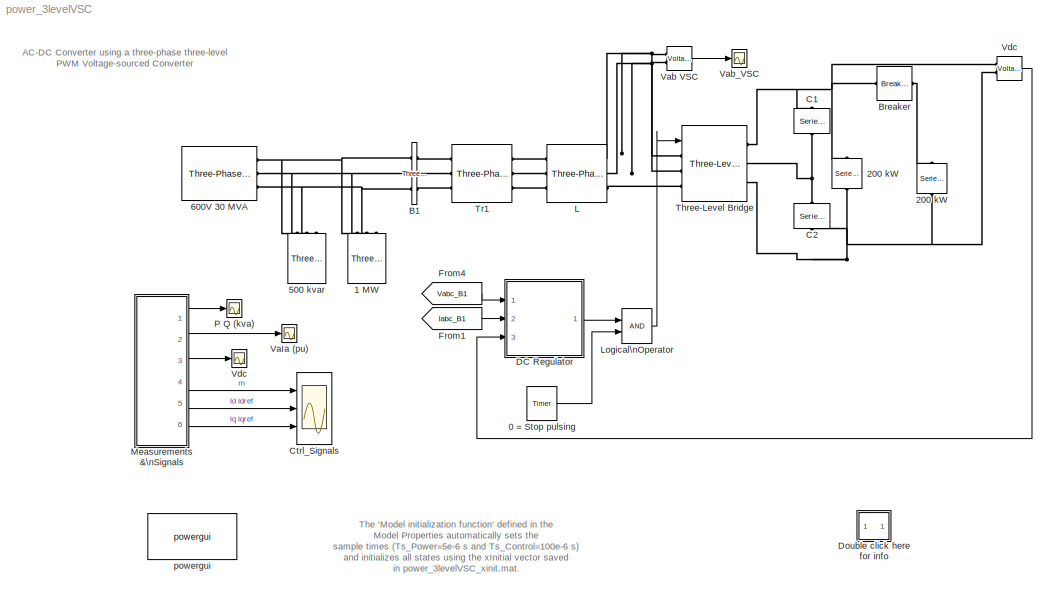
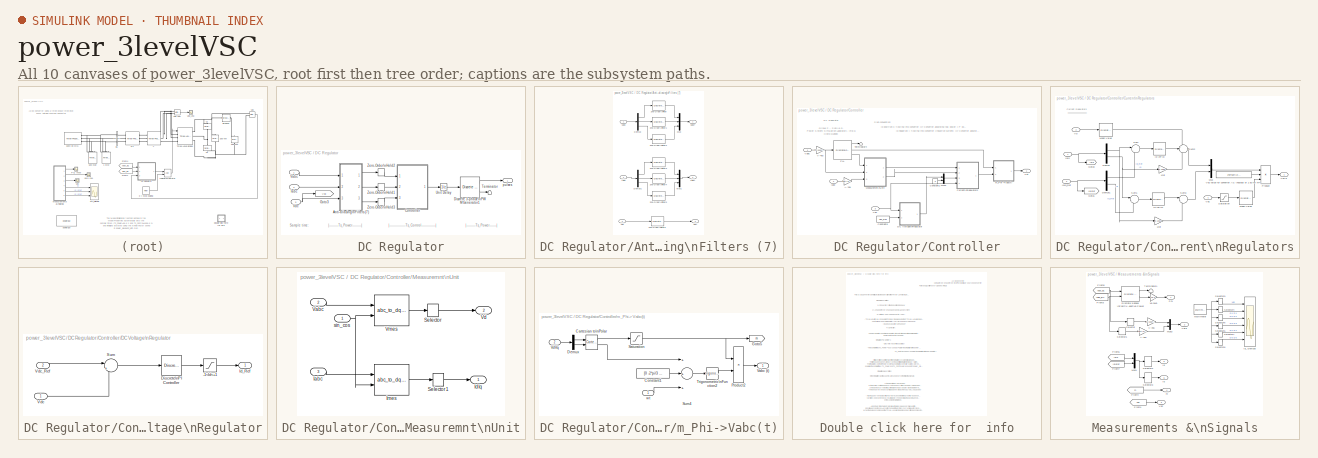
[diagram: thumbnail index - all 10 canvases of the model, root first then tree order]
MODEL power_3levelVSC
KIND model
CONFIG InitFcn = Ts_Power=5e-6;\nTs_Control=100e-6;\nload power_3levelVSC_xinit
BLOCK [Reference] 0 = Stop pulsing  REF=powerlib_extras/Control \nBlocks/Timer
  Ports = [0, 1]
  ShowPortLabels = on
  SourceBlock = powerlib_extras/Control \nBlocks/Timer
  SourceType = Timer
  e = [1 0]
  t = [0 0.1]
BLOCK [Reference] 1 MW  REF=powerlib/Elements/Three-Phase\nSeries RLC Load
  ActivePower = 1e6
  AttributesFormatString = \\n
  CapacitivePower = 0
  Configuration = Y (grounded)
  InductivePower = 0
  LConnTagsString = A|B|C
  LeftPortType = p1
  Measurements = None
  NominalFrequency = 60
  NominalVoltage = 600
  PhysicalDomain = powersysdomain
  Ports = [0, 0, 0, 0, 0, 3]
  RightPortType = p1
  SourceBlock = powerlib/Elements/Three-Phase\nSeries RLC Load
  SourceType = Three-Phase Series RLC Load
  SubClassName = unknown
BLOCK [Reference] 200 kW  REF=powerlib/Elements/Series RLC Branch
  AttributesFormatString = \\n
  Capacitance = inf
  Inductance = 0
  LConnTagsString = __new0
  LeftPortType = p1
  Measurements = None
  PhysicalDomain = powersysdomain
  Ports = [0, 0, 0, 0, 0, 1, 1]
  RConnTagsString = __new0
  Resistance = 500^2/200e3
  RightPortType = p1
  SourceBlock = powerlib/Elements/Series RLC Branch
  SourceType = Series RLC Branch
  SubClassName = unknown
BLOCK [Reference] 200 kW   REF=powerlib/Elements/Series RLC Branch
  AttributesFormatString = \\n
  Capacitance = inf
  Inductance = 0
  LConnTagsString = __new0
  LeftPortType = p1
  Measurements = None
  PhysicalDomain = powersysdomain
  Ports = [0, 0, 0, 0, 0, 1, 1]
  RConnTagsString = __new0
  Resistance = 500^2/200e3
  RightPortType = p1
  SourceBlock = powerlib/Elements/Series RLC Branch
  SourceType = Series RLC Branch
  SubClassName = unknown
BLOCK [Reference] 500 kvar  REF=powerlib/Elements/Three-Phase\nSeries RLC Load
  ActivePower = 0.5e6/100
  AttributesFormatString = \\n
  CapacitivePower = 0.5e6
  Configuration = Y (grounded)
  InductivePower = 0
  LConnTagsString = A|B|C
  LeftPortType = p1
  Measurements = None
  NominalFrequency = 60
  NominalVoltage = 600
  PhysicalDomain = powersysdomain
  Ports = [0, 0, 0, 0, 0, 3]
  RightPortType = p1
  SourceBlock = powerlib/Elements/Three-Phase\nSeries RLC Load
  SourceType = Three-Phase Series RLC Load
  SubClassName = unknown
BLOCK [Reference] 600V 30 MVA  REF=powerlib/Electrical\nSources/Three-Phase Source
  BaseVoltage = 600
  Frequency = 60
  Inductance = 19.2e-3
  InternalConnection = Yg
  PhaseAngle = 0
  Ports = [0, 0, 0, 0, 0, 0, 3]
  Resistance = 0.724
  ShortCircuitLevel = 30e6
  ShowPortLabels = on
  SourceBlock = powerlib/Electrical\nSources/Three-Phase Source
  SourceType = Three-Phase Source
  SpecifyImpedance = on
  Voltage = 600
  XRratio = 10
BLOCK [Reference] B1  REF=powerlib/Measurements/Three-Phase\nV-I Measurement
  CurrentMeasurement = yes
  Ipu = off
  LabelI = Iabc_B1
  LabelV = Vabc_B1
  OutputType = Magnitude
  PSBequivalent = 0
  Pbase = 100e6
  PhasorSimulation = off
  Ports = [0, 0, 0, 0, 0, 3, 3]
  SetLabelI = on
  SetLabelV = on
  ShowPortLabels = on
  SourceBlock = powerlib/Measurements/Three-Phase\nV-I Measurement
  SourceType = Three-Phase VI Measurement
  Vbase = 500e3
  VoltageMeasurement = phase-to-ground
  Vpu = off
BLOCK [Reference] Breaker  REF=powerlib/Elements/Breaker
  AttributesFormatString = \\n
  BreakerResistance = 0.001
  External = off
  InitialState = 0
  Measurements = None
  Ports = [0, 0, 0, 0, 0, 1, 1]
  ShowPortLabels = on
  SnubberCapacitance = inf
  SnubberResistance = 1e6
  SourceBlock = powerlib/Elements/Breaker
  SourceType = Breaker
  SwitchingTimes = [0.05]
BLOCK [Reference] C1  REF=powerlib/Elements/Series RLC Branch
  AttributesFormatString = \\n
  Capacitance = 75000e-06
  Inductance = 0
  LConnTagsString = __new0
  LeftPortType = p1
  Measurements = None
  PhysicalDomain = powersysdomain
  Ports = [0, 0, 0, 0, 0, 1, 1]
  RConnTagsString = __new0
  Resistance = 0
  RightPortType = p1
  SourceBlock = powerlib/Elements/Series RLC Branch
  SourceType = Series RLC Branch
  SubClassName = unknown
BLOCK [Reference] C2  REF=powerlib/Elements/Series RLC Branch
  AttributesFormatString = \\n
  Capacitance = 75000e-06
  Inductance = 0
  LConnTagsString = __new0
  LeftPortType = p1
  Measurements = None
  PhysicalDomain = powersysdomain
  Ports = [0, 0, 0, 0, 0, 1, 1]
  RConnTagsString = __new0
  Resistance = 0
  RightPortType = p1
  SourceBlock = powerlib/Elements/Series RLC Branch
  SourceType = Series RLC Branch
  SubClassName = unknown
BLOCK [Scope] Ctrl_Signals
  DataFormat = Array
  LimitDataPoints = off
  NumInputPorts = 3
  Ports = [3]
  SampleInput = on
  SampleTime = Ts_Control
  SaveName = V_Load
  TimeRange = 0.15
  YMax = 1~1.5~0.1
  YMin = 0.2~-0.5~-0.3
  ZoomMode = yonly
BLOCK [SubSystem] DC Regulator
  MaskEnableString = on
  MaskIconFrame = on
  MaskIconOpaque = on
  MaskIconRotate = none
  MaskIconUnits = autoscale
  MaskPromptString = DC voltage setpoint (V):
  MaskStyleString = edit
  MaskToolTipString = on
  MaskTunableValueString = on
  MaskType = DC Voltage Regulator
  MaskValueString = 500
  MaskVariables = Vdc_Ref=@1;
  MaskVisibilityString = on
  MinAlgLoopOccurrences = off
  Ports = [3, 1]
  RTWSystemCode = Auto
  TreatAsAtomicUnit = off
BLOCK [SubSystem] DC Regulator/Anti-aliasing\nFilters (7)
  MaskCallbackString = |
  MaskEnableString = on,on
  MaskIconFrame = on
  MaskIconOpaque = on
  MaskIconRotate = none
  MaskIconUnits = autoscale
  MaskPromptString = Cut-off frequency (Hz):|Sample time:
  MaskStyleString = edit,edit
  MaskTabNameString = ,
  MaskToolTipString = on,on
  MaskTunableValueString = on,on
  MaskType = Anti-aliasing (2nd order lowpass)
  MaskValueString = 750|Ts_Power
  MaskVarAliasString = ,
  MaskVariables = Fc=@1;Ts=@2;
  MaskVisibilityString = on,on
  MinAlgLoopOccurrences = off
  Ports = [3, 3]
  RTWSystemCode = Auto
  TreatAsAtomicUnit = off
BLOCK [Outport] DC Regulator/Anti-aliasing\nFilters (7)/ Vabc*
  IconDisplay = Port number
BLOCK [Outport] DC Regulator/Anti-aliasing\nFilters (7)/ Vdc*
  IconDisplay = Port number
  Port = 3
BLOCK [Reference] DC Regulator/Anti-aliasing\nFilters (7)/2nd-Order\nFilter  REF=powerlib_extras/Discrete \nControl Blocks/Discrete \n2nd-Order\nFilter
  FilterType = Lowpass
  Fo = Fc
  Initialize = off
  PlotResponse = off
  Ports = [1, 1]
  ShowPortLabels = on
  SourceBlock = powerlib_extras/Discrete \nControl Blocks/Discrete \n2nd-Order\nFilter
  SourceType = Discrete 2nd-Order Filter
  Ts = Ts
  Vac_Init = [0.8 -25 60]
  Vdc_Init = -0.4
  Zeta = 0.707
  param1 = [1 2000 0.2]
BLOCK [Reference] DC Regulator/Anti-aliasing\nFilters (7)/2nd-Order\nFilter1  REF=powerlib_extras/Discrete \nControl Blocks/Discrete \n2nd-Order\nFilter
  FilterType = Lowpass
  Fo = Fc
  Initialize = off
  PlotResponse = off
  Ports = [1, 1]
  ShowPortLabels = on
  SourceBlock = powerlib_extras/Discrete \nControl Blocks/Discrete \n2nd-Order\nFilter
  SourceType = Discrete 2nd-Order Filter
  Ts = Ts
  Vac_Init = [0.8 -25 60]
  Vdc_Init = -0.4
  Zeta = 0.707
  param1 = [1 5000 0.1]
BLOCK [Reference] DC Regulator/Anti-aliasing\nFilters (7)/2nd-Order\nFilter2  REF=powerlib_extras/Discrete \nControl Blocks/Discrete \n2nd-Order\nFilter
  FilterType = Lowpass
  Fo = Fc
  Initialize = off
  PlotResponse = off
  Ports = [1, 1]
  ShowPortLabels = on
  SourceBlock = powerlib_extras/Discrete \nControl Blocks/Discrete \n2nd-Order\nFilter
  SourceType = Discrete 2nd-Order Filter
  Ts = Ts
  Vac_Init = [0.8 -25 60]
  Vdc_Init = -0.4
  Zeta = 0.707
  param1 = [1 5000 0.1]
BLOCK [Reference] DC Regulator/Anti-aliasing\nFilters (7)/2nd-Order\nFilter3  REF=powerlib_extras/Discrete \nControl Blocks/Discrete \n2nd-Order\nFilter
  FilterType = Lowpass
  Fo = Fc
  Initialize = off
  PlotResponse = off
  Ports = [1, 1]
  ShowPortLabels = on
  SourceBlock = powerlib_extras/Discrete \nControl Blocks/Discrete \n2nd-Order\nFilter
  SourceType = Discrete 2nd-Order Filter
  Ts = Ts
  Vac_Init = [0.8 -25 60]
  Vdc_Init = -0.4
  Zeta = 0.707
  param1 = [1 2000 0.2]
BLOCK [Reference] DC Regulator/Anti-aliasing\nFilters (7)/2nd-Order\nFilter4  REF=powerlib_extras/Discrete \nControl Blocks/Discrete \n2nd-Order\nFilter
  FilterType = Lowpass
  Fo = Fc
  Initialize = off
  PlotResponse = off
  Ports = [1, 1]
  ShowPortLabels = on
  SourceBlock = powerlib_extras/Discrete \nControl Blocks/Discrete \n2nd-Order\nFilter
  SourceType = Discrete 2nd-Order Filter
  Ts = Ts
  Vac_Init = [0.8 -25 60]
  Vdc_Init = -0.4
  Zeta = 0.707
  param1 = [1 5000 0.1]
BLOCK [Reference] DC Regulator/Anti-aliasing\nFilters (7)/2nd-Order\nFilter5  REF=powerlib_extras/Discrete \nControl Blocks/Discrete \n2nd-Order\nFilter
  FilterType = Lowpass
  Fo = Fc
  Initialize = off
  PlotResponse = off
  Ports = [1, 1]
  ShowPortLabels = on
  SourceBlock = powerlib_extras/Discrete \nControl Blocks/Discrete \n2nd-Order\nFilter
  SourceType = Discrete 2nd-Order Filter
  Ts = Ts
  Vac_Init = [0.8 -25 60]
  Vdc_Init = -0.4
  Zeta = 0.707
  param1 = [1 5000 0.1]
BLOCK [Reference] DC Regulator/Anti-aliasing\nFilters (7)/2nd-Order\nFilter6  REF=powerlib_extras/Discrete \nControl Blocks/Discrete \n2nd-Order\nFilter
  FilterType = Lowpass
  Fo = Fc
  Initialize = off
  PlotResponse = off
  Ports = [1, 1]
  ShowPortLabels = on
  SourceBlock = powerlib_extras/Discrete \nControl Blocks/Discrete \n2nd-Order\nFilter
  SourceType = Discrete 2nd-Order Filter
  Ts = Ts
  Vac_Init = [0.8 -25 60]
  Vdc_Init = -0.4
  Zeta = 0.707
  param1 = [1 5000 0.1]
BLOCK [Demux] DC Regulator/Anti-aliasing\nFilters (7)/Demux
  Outputs = 3
  Ports = [1, 3]
BLOCK [Demux] DC Regulator/Anti-aliasing\nFilters (7)/Demux1
  Outputs = 3
  Ports = [1, 3]
BLOCK [Inport] DC Regulator/Anti-aliasing\nFilters (7)/Iabc 
  IconDisplay = Port number
  LatchInput = off
  Port = 2
  PortDimensions = 3
BLOCK [Outport] DC Regulator/Anti-aliasing\nFilters (7)/Iabc*
  IconDisplay = Port number
  Port = 2
BLOCK [Mux] DC Regulator/Anti-aliasing\nFilters (7)/Mux
  DisplayOption = bar
  Inputs = 3
  Ports = [3, 1]
BLOCK [Mux] DC Regulator/Anti-aliasing\nFilters (7)/Mux1
  DisplayOption = bar
  Inputs = 3
  Ports = [3, 1]
BLOCK [Inport] DC Regulator/Anti-aliasing\nFilters (7)/Vabc
  IconDisplay = Port number
  LatchInput = off
  Port = 1
  PortDimensions = 3
BLOCK [Inport] DC Regulator/Anti-aliasing\nFilters (7)/Vdc 
  IconDisplay = Port number
  LatchInput = off
  Port = 3
  PortDimensions = 1
BLOCK [SubSystem] DC Regulator/Controller
  MaskCallbackString = ||||
  MaskEnableString = on,on,on,on,on
  MaskIconFrame = on
  MaskIconOpaque = on
  MaskIconRotate = none
  MaskIconUnits = autoscale
  MaskInitialization = Vnom=Par_Nom(1);\nPnom=Par_Nom(2);\nKp_I=Par_IReg(1);\nKi_I=Par_IReg(2);\nKp_Vdc=Par_VdcReg(1);\nKi_Vdc=Par_VdcReg(2);\n
  MaskPromptString = DC Voltage setpoint (Volts)|Vdc Regulator Gains: [ Kp  Ki ]|Current Regulators Gain: [ Kp Ki Kd ]|Nominal Voltage and power: [ Vnom (volts rms L-L)  Pnom (VA) ]|Time Step (s)
  MaskStyleString = edit,edit,edit,edit,edit
  MaskTabNameString = ,,,,
  MaskToolTipString = on,on,on,on,on
  MaskTunableValueString = on,on,on,on,on
  MaskType = DC Regulator
  MaskValueString = Vdc_Ref|[0.015 1.6]|[0.3 20]|[600 500e3]|Ts_Control
  MaskVarAliasString = ,,,,
  MaskVariables = Vdc_Ref=@1;Par_VdcReg=@2;Par_IReg=@3;Par_Nom=@4;Ts=@5;
  MaskVisibilityString = on,on,on,on,on
  MinAlgLoopOccurrences = off
  Ports = [3, 1]
  RTWSystemCode = Auto
  TreatAsAtomicUnit = off
BLOCK [Gain] DC Regulator/Controller/A->pu
  Gain = sqrt(3)*Vnom/sqrt(2)/Pnom
BLOCK [Constant] DC Regulator/Controller/Constant1
  Value = 0
BLOCK [Constant] DC Regulator/Controller/Constant6
  Value = Vdc_Ref
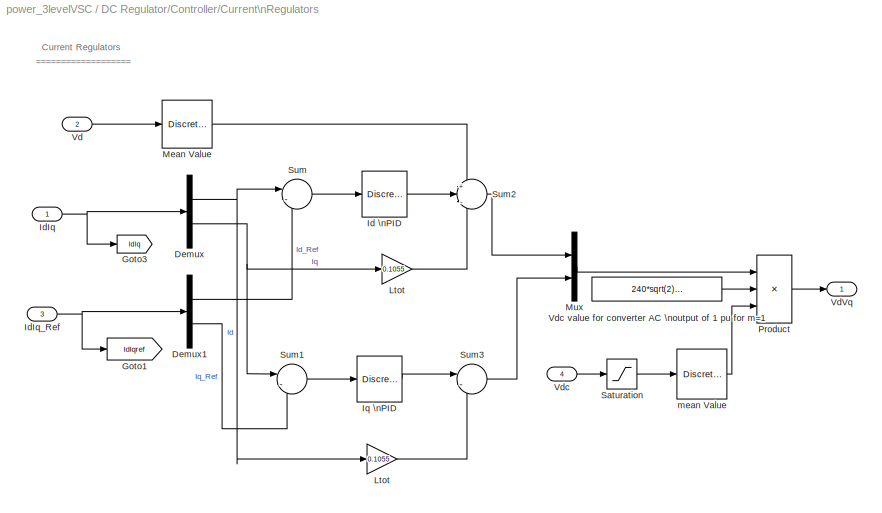
BLOCK [SubSystem] DC Regulator/Controller/Current\nRegulators
  MaskCallbackString = ||||||
  MaskDescription = Sign convention:\nId positive(+) flowing into converter ==> Converter absorbing real power = P positive(+) \nIq negative(-) flowing into converter (inductive current) ==> Converter absorbing reactive power = Q positive(+)
  MaskEnableString = on,on,on,on,on,on,on
  MaskIconFrame = on
  MaskIconOpaque = on
  MaskIconRotate = none
  MaskIconUnits = autoscale
  MaskPromptString = Proportional gain (Kp):|Integral gain (Ki):|Derivative gain (Kd):|Time constant for derivative (s):|Output limits: [ Upper   Lower ]|Output initial value:|Sample time:
  MaskStyleString = edit,edit,edit,edit,edit,edit,edit
  MaskTabNameString = ,,,,,,
  MaskToolTipString = on,on,on,on,on,on,on
  MaskTunableValueString = on,on,on,on,on,on,on
  MaskType = Current Regulators
  MaskValueString = Kp_I|Ki_I|0|0.2e-3|[12 -12]|0|Ts
  MaskVarAliasString = ,,,,,,
  MaskVariables = Kp=@1;Ki=@2;Kd=@3;TcD=@4;Par_Limits=@5;Init=@6;Ts=@7;
  MaskVisibilityString = on,on,on,on,on,on,on
  MinAlgLoopOccurrences = off
  Ports = [4, 1]
  RTWSystemCode = Auto
  TreatAsAtomicUnit = off
BLOCK [Gain] DC Regulator/Controller/Current\nRegulators/ Ltot
  Gain = 0.1055
BLOCK [Demux] DC Regulator/Controller/Current\nRegulators/Demux
  Outputs = 2
  Ports = [1, 2]
BLOCK [Demux] DC Regulator/Controller/Current\nRegulators/Demux1
  Outputs = 2
  Ports = [1, 2]
BLOCK [Goto] DC Regulator/Controller/Current\nRegulators/Goto1
  DialogController = Simulink.DDGSource
  GotoTag = IdIqref
  TagVisibility = global
BLOCK [Goto] DC Regulator/Controller/Current\nRegulators/Goto3
  DialogController = Simulink.DDGSource
  GotoTag = IdIq
  TagVisibility = global
BLOCK [Reference] DC Regulator/Controller/Current\nRegulators/Id \nPID  REF=powerlib_extras/Discrete \nControl Blocks/Discrete\nPID Controller
  Init = Init
  Kd = Kd
  Ki = Ki
  Kp = Kp
  Par_Limits = Par_Limits
  Ports = [1, 1]
  ShowPortLabels = on
  SourceBlock = powerlib_extras/Discrete \nControl Blocks/Discrete\nPID Controller
  SourceType = Discrete PID Controller
  TcD = TcD
  Ts = Ts
BLOCK [Inport] DC Regulator/Controller/Current\nRegulators/IdIq
  IconDisplay = Port number
  LatchInput = off
  Port = 1
  PortDimensions = 2
BLOCK [Inport] DC Regulator/Controller/Current\nRegulators/IdIq_Ref
  IconDisplay = Port number
  LatchInput = off
  Port = 3
  PortDimensions = 2
BLOCK [Reference] DC Regulator/Controller/Current\nRegulators/Iq \nPID  REF=powerlib_extras/Discrete \nControl Blocks/Discrete\nPID Controller
  Init = Init
  Kd = Kd
  Ki = Ki
  Kp = Kp
  Par_Limits = Par_Limits
  Ports = [1, 1]
  ShowPortLabels = on
  SourceBlock = powerlib_extras/Discrete \nControl Blocks/Discrete\nPID Controller
  SourceType = Discrete PID Controller
  TcD = TcD
  Ts = Ts
BLOCK [Gain] DC Regulator/Controller/Current\nRegulators/Ltot 
  Gain = 0.1055
BLOCK [Reference] DC Regulator/Controller/Current\nRegulators/Mean Value  REF=powerlib_extras/Discrete\nMeasurements/Discrete \nMean value
  Freq = 60
  Ports = [1, 1]
  ShowPortLabels = on
  SourceBlock = powerlib_extras/Discrete\nMeasurements/Discrete \nMean value
  SourceType = Discrete Mean value
  Ts = Ts
  Vinit = 1.007
BLOCK [Mux] DC Regulator/Controller/Current\nRegulators/Mux
  DisplayOption = bar
  Inputs = 2
  Ports = [2, 1]
BLOCK [Product] DC Regulator/Controller/Current\nRegulators/Product
  Inputs = **/
  Ports = [3, 1]
  RndMeth = Floor
BLOCK [Saturate] DC Regulator/Controller/Current\nRegulators/Saturation
  LowerLimit = 10
  UpperLimit = 10000
BLOCK [Sum] DC Regulator/Controller/Current\nRegulators/Sum
  IconShape = round
  Inputs = |-+
  Ports = [2, 1]
BLOCK [Sum] DC Regulator/Controller/Current\nRegulators/Sum1
  IconShape = round
  Inputs = |-+
  Ports = [2, 1]
BLOCK [Sum] DC Regulator/Controller/Current\nRegulators/Sum2
  IconShape = round
  Inputs = +|-|+
  Ports = [3, 1]
BLOCK [Sum] DC Regulator/Controller/Current\nRegulators/Sum3
  IconShape = round
  Inputs = |--
  Ports = [2, 1]
BLOCK [Inport] DC Regulator/Controller/Current\nRegulators/Vd
  IconDisplay = Port number
  LatchInput = off
  Port = 2
BLOCK [Outport] DC Regulator/Controller/Current\nRegulators/VdVq
  IconDisplay = Port number
BLOCK [Inport] DC Regulator/Controller/Current\nRegulators/Vdc
  IconDisplay = Port number
  LatchInput = off
  Port = 4
BLOCK [Constant] DC Regulator/Controller/Current\nRegulators/Vdc value for converter AC \noutput of 1 pu for m=1
  Value = 240*sqrt(2)/(sqrt(3)/2)
BLOCK [Reference] DC Regulator/Controller/Current\nRegulators/mean Value   REF=powerlib_extras/Discrete\nMeasurements/Discrete \nMean value
  Freq = 60
  Ports = [1, 1]
  ShowPortLabels = on
  SourceBlock = powerlib_extras/Discrete\nMeasurements/Discrete \nMean value
  SourceType = Discrete Mean value
  Ts = Ts
  Vinit = 500
BLOCK [SubSystem] DC Regulator/Controller/DC Voltage\nRegulator
  MaskCallbackString = ||
  MaskEnableString = on,on,on
  MaskIconFrame = on
  MaskIconOpaque = on
  MaskIconRotate = none
  MaskIconUnits = autoscale
  MaskPromptString = Proportional gain (Kp):|Integral gain(Ki)|Sample time:
  MaskStyleString = edit,edit,edit
  MaskTabNameString = ,,
  MaskToolTipString = on,on,on
  MaskTunableValueString = on,on,on
  MaskType = DC Voltage regulator
  MaskValueString = Kp_Vdc|Ki_Vdc|Ts
  MaskVarAliasString = ,,
  MaskVariables = Kp=@1;Ki=@2;Ts=@3;
  MaskVisibilityString = on,on,on
  MinAlgLoopOccurrences = off
  Ports = [2, 1]
  RTWSystemCode = Auto
  TreatAsAtomicUnit = off
BLOCK [Saturate] DC Regulator/Controller/DC Voltage\nRegulator/-1<Id<+1
  LowerLimit = -1.2
  UpperLimit = 1.2
BLOCK [Reference] DC Regulator/Controller/DC Voltage\nRegulator/Discrete\nPI Controller  REF=powerlib_extras/Discrete \nControl Blocks/Discrete\nPI Controller
  Init = 0
  Ki = Ki
  Kp = Kp
  Par_Limits = [1.2 -1.2]
  Ports = [1, 1]
  ShowPortLabels = on
  SourceBlock = powerlib_extras/Discrete \nControl Blocks/Discrete\nPI Controller
  SourceType = Discrete PI Controller
  Ts = Ts
BLOCK [Outport] DC Regulator/Controller/DC Voltage\nRegulator/Id_Ref
  IconDisplay = Port number
  InitialOutput = 0
BLOCK [Sum] DC Regulator/Controller/DC Voltage\nRegulator/Sum
  IconShape = round
  Inputs = |+-
  Ports = [2, 1]
BLOCK [Inport] DC Regulator/Controller/DC Voltage\nRegulator/Vdc
  IconDisplay = Port number
  LatchInput = off
  Port = 1
BLOCK [Inport] DC Regulator/Controller/DC Voltage\nRegulator/Vdc_Ref
  IconDisplay = Port number
  LatchInput = off
  Port = 2
BLOCK [Inport] DC Regulator/Controller/Iabc
  IconDisplay = Port number
  LatchInput = off
  Port = 2
  PortDimensions = 3
BLOCK [SubSystem] DC Regulator/Controller/Measuremnt\nUnit
  MinAlgLoopOccurrences = off
  Ports = [3, 2]
  RTWSystemCode = Auto
  TreatAsAtomicUnit = off
BLOCK [Inport] DC Regulator/Controller/Measuremnt\nUnit/Iabc
  IconDisplay = Port number
  LatchInput = off
  Port = 3
BLOCK [Outport] DC Regulator/Controller/Measuremnt\nUnit/IdIq
  IconDisplay = Port number
BLOCK [Reference] DC Regulator/Controller/Measuremnt\nUnit/Imes  REF=powerlib_extras/Measurements/abc_to_dq0\nTransformation
  Ports = [2, 1]
  ShowPortLabels = on
  SourceBlock = powerlib_extras/Measurements/abc_to_dq0\nTransformation
  SourceType = abc to dq0 Transformation
BLOCK [Selector] DC Regulator/Controller/Measuremnt\nUnit/Selector
  InputPortWidth = 3
  Ports = [1, 1]
BLOCK [Selector] DC Regulator/Controller/Measuremnt\nUnit/Selector1
  Elements = [1 2]
  InputPortWidth = 3
  Ports = [1, 1]
BLOCK [Inport] DC Regulator/Controller/Measuremnt\nUnit/Vabc
  IconDisplay = Port number
  LatchInput = off
  Port = 2
BLOCK [Outport] DC Regulator/Controller/Measuremnt\nUnit/Vd
  IconDisplay = Port number
  Port = 2
BLOCK [Reference] DC Regulator/Controller/Measuremnt\nUnit/Vmes  REF=powerlib_extras/Measurements/abc_to_dq0\nTransformation
  Ports = [2, 1]
  ShowPortLabels = on
  SourceBlock = powerlib_extras/Measurements/abc_to_dq0\nTransformation
  SourceType = abc to dq0 Transformation
BLOCK [Inport] DC Regulator/Controller/Measuremnt\nUnit/sin_cos
  IconDisplay = Port number
  LatchInput = off
  Port = 1
BLOCK [Mux] DC Regulator/Controller/Mux3
  DisplayOption = bar
  Inputs = 2
  Ports = [2, 1]
BLOCK [Reference] DC Regulator/Controller/PLL  REF=powerlib_extras/Discrete \nControl Blocks/Discrete\n3-phase PLL
  Fmin = 45
  ParK = [60 1400]
  Par_Init = [-45 60]
  Ports = [1, 3]
  ShowPortLabels = on
  SourceBlock = powerlib_extras/Discrete \nControl Blocks/Discrete\n3-phase PLL
  SourceType = Discrete 3-phase PLL
  Ts = Ts
BLOCK [Terminator] DC Regulator/Controller/Terminator4
BLOCK [Outport] DC Regulator/Controller/Ust
  IconDisplay = Port number
BLOCK [Gain] DC Regulator/Controller/V->pu
  Gain = 1/(Vnom*sqrt(2)/sqrt(3))
BLOCK [Inport] DC Regulator/Controller/Vabc
  IconDisplay = Port number
  LatchInput = off
  Port = 1
  PortDimensions = 3
BLOCK [Inport] DC Regulator/Controller/Vdc
  IconDisplay = Port number
  LatchInput = off
  Port = 3
  PortDimensions = 1
BLOCK [SubSystem] DC Regulator/Controller/m_Phi->Vabc(t)
  MinAlgLoopOccurrences = off
  Ports = [2, 1]
  RTWSystemCode = Auto
  TreatAsAtomicUnit = off
BLOCK [Reference] DC Regulator/Controller/m_Phi->Vabc(t)/Cartesian to\nPolar  REF=simulink_extras/Transformations/Cartesian to\nPolar
  Ports = [2, 2]
  ShowPortLabels = on
  SourceBlock = simulink_extras/Transformations/Cartesian to\nPolar
  SourceType = Cart2Polar
BLOCK [Constant] DC Regulator/Controller/m_Phi->Vabc(t)/Constant1
  Value = [0 -2*pi/3 2*pi/3]
BLOCK [Demux] DC Regulator/Controller/m_Phi->Vabc(t)/Demux
  Outputs = 2
  Ports = [1, 2]
BLOCK [Goto] DC Regulator/Controller/m_Phi->Vabc(t)/Goto5
  DialogController = Simulink.DDGSource
  GotoTag = m
  TagVisibility = global
BLOCK [Product] DC Regulator/Controller/m_Phi->Vabc(t)/Product2
  Ports = [2, 1]
  RndMeth = Floor
BLOCK [Saturate] DC Regulator/Controller/m_Phi->Vabc(t)/Saturation
  LowerLimit = 0
  UpperLimit = 1
BLOCK [Sum] DC Regulator/Controller/m_Phi->Vabc(t)/Sum4
  Inputs = +++
  Ports = [3, 1]
BLOCK [Trigonometry] DC Regulator/Controller/m_Phi->Vabc(t)/Trigonometric\nFunction2
  Ports = [1, 1]
BLOCK [Outport] DC Regulator/Controller/m_Phi->Vabc(t)/Vabc (t)
  IconDisplay = Port number
BLOCK [Inport] DC Regulator/Controller/m_Phi->Vabc(t)/VdVq
  IconDisplay = Port number
  LatchInput = off
  Port = 2
BLOCK [Inport] DC Regulator/Controller/m_Phi->Vabc(t)/wt
  IconDisplay = Port number
  LatchInput = off
  Port = 1
BLOCK [Reference] DC Regulator/Discrete 3-phase\nPWM Generator1  REF=powerlib_extras/Discrete \nControl Blocks/Discrete 3-phase\nPWM Generator
  Fc = 27*60
  Freq = 60
  ModulatingSignals = off
  ModulatorMode = Un-synchronized
  ModulatorType = 3-level
  Phase = 0
  Ports = [1, 2]
  ShowPortLabels = on
  SourceBlock = powerlib_extras/Discrete \nControl Blocks/Discrete 3-phase\nPWM Generator
  SourceType = Discrete 3-phase PWM Generator (2- or 3-level)
  Ts = Ts_Power
  m = 0.2
  nF = 18
BLOCK [Goto] DC Regulator/Goto3
  DialogController = Simulink.DDGSource
  GotoTag = Vdc
  TagVisibility = global
BLOCK [Inport] DC Regulator/Iabc
  IconDisplay = Port number
  LatchInput = off
  Port = 2
  PortDimensions = 3
BLOCK [Terminator] DC Regulator/Terminator
BLOCK [UnitDelay] DC Regulator/Unit Delay
  SampleTime = Ts_Control
BLOCK [Inport] DC Regulator/Vabc
  IconDisplay = Port number
  LatchInput = off
  Port = 1
  PortDimensions = 3
BLOCK [Inport] DC Regulator/Vdc
  IconDisplay = Port number
  LatchInput = off
  Port = 3
  PortDimensions = 1
BLOCK [ZeroOrderHold] DC Regulator/Zero-Order\nHold1
  SampleTime = Ts_Control
BLOCK [ZeroOrderHold] DC Regulator/Zero-Order\nHold2
  SampleTime = Ts_Control
BLOCK [ZeroOrderHold] DC Regulator/Zero-Order\nHold3
  SampleTime = Ts_Control
BLOCK [Outport] DC Regulator/pulses
  IconDisplay = Port number
BLOCK [SubSystem] Double click here for  info
  MaskDisplay = disp('?')
  MaskIconFrame = on
  MaskIconOpaque = on
  MaskIconRotate = none
  MaskIconUnits = autoscale
  MaskType = Information
  MinAlgLoopOccurrences = off
  Ports = []
  RTWSystemCode = Auto
  TreatAsAtomicUnit = off
BLOCK [From] From1
  CloseFcn = tagdialog Close
  DialogController = Simulink.DDGSource
  GotoTag = Iabc_B1
BLOCK [From] From4
  CloseFcn = tagdialog Close
  DialogController = Simulink.DDGSource
  GotoTag = Vabc_B1
BLOCK [Reference] L  REF=powerlib/Elements/Three-Phase\nSeries RLC Branch
  AttributesFormatString = \\n
  Capacitance = inf
  Inductance = 20e-6
  LConnTagsString = A|B|C
  LeftPortType = p1
  Measurements = None
  PhysicalDomain = powersysdomain
  Ports = [0, 0, 0, 0, 0, 3, 3]
  RConnTagsString = A|B|C
  Resistance = 0.1e-3
  RightPortType = p1
  SourceBlock = powerlib/Elements/Three-Phase\nSeries RLC Branch
  SourceType = Three-Phase Series RLC Branch
  SubClassName = unknown
BLOCK [Logic] Logical\nOperator
  AllPortsSameDT = off
  LogicDataType = float('double')
  OutDataTypeMode = Specify via dialog
  Ports = [2, 1]
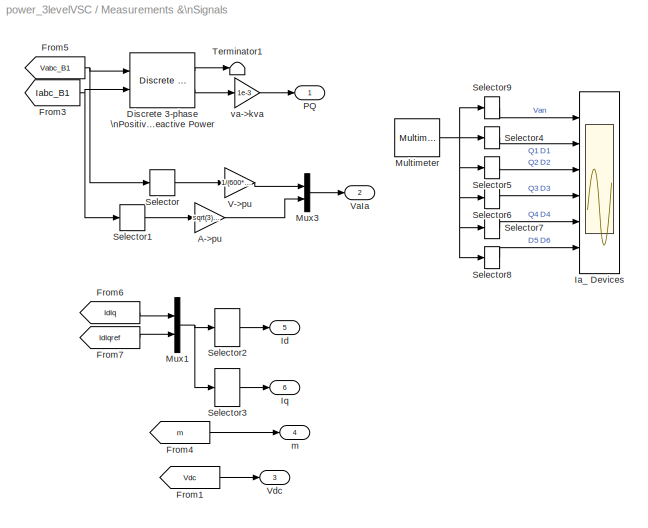
BLOCK [SubSystem] Measurements &\nSignals
  MinAlgLoopOccurrences = off
  Ports = [0, 6]
  RTWSystemCode = Auto
  TreatAsAtomicUnit = off
BLOCK [Gain] Measurements &\nSignals/A->pu
  Gain = sqrt(3)*600/sqrt(2)/500e3
BLOCK [Reference] Measurements &\nSignals/Discrete 3-phase \nPositive-Sequence \nActive & Reactive Power  REF=powerlib_extras/Discrete\nMeasurements/Discrete 3-phase \nPositive-Sequence \nActive & Reactive Power
  Freq = 60
  Par_Iinit = [5 0]
  Par_Vinit = [370 0]
  Ports = [2, 2]
  ShowPortLabels = on
  SourceBlock = powerlib_extras/Discrete\nMeasurements/Discrete 3-phase \nPositive-Sequence \nActive & Reactive Power
  SourceType = Discrete 3-phase Positive-Sequence Active & Reactive Power
  Ts = Ts_Power
BLOCK [From] Measurements &\nSignals/From1
  CloseFcn = tagdialog Close
  DialogController = Simulink.DDGSource
  GotoTag = Vdc
BLOCK [From] Measurements &\nSignals/From3
  CloseFcn = tagdialog Close
  DialogController = Simulink.DDGSource
  GotoTag = Iabc_B1
BLOCK [From] Measurements &\nSignals/From4
  CloseFcn = tagdialog Close
  DialogController = Simulink.DDGSource
  GotoTag = m
BLOCK [From] Measurements &\nSignals/From5
  CloseFcn = tagdialog Close
  DialogController = Simulink.DDGSource
  GotoTag = Vabc_B1
BLOCK [From] Measurements &\nSignals/From6
  CloseFcn = tagdialog Close
  DialogController = Simulink.DDGSource
  GotoTag = IdIq
BLOCK [From] Measurements &\nSignals/From7
  CloseFcn = tagdialog Close
  DialogController = Simulink.DDGSource
  GotoTag = IdIqref
BLOCK [Scope] Measurements &\nSignals/Ia_ Devices
  DataFormat = Array
  LimitDataPoints = off
  NumInputPorts = 6
  Ports = [6]
  SampleInput = on
  SampleTime = Ts_Power*2
  SaveName = I_Q3_disc1
  TimeRange = 0.033
  YMax = 300~7500~7500~4000~4000~7500
  YMin = -400~-0~-0~0~0~0
  ZoomMode = xonly
BLOCK [Outport] Measurements &\nSignals/Id
  IconDisplay = Port number
  Port = 5
BLOCK [Outport] Measurements &\nSignals/Iq
  IconDisplay = Port number
  Port = 6
BLOCK [Reference] Measurements &\nSignals/Multimeter  REF=powerlib/Measurements/Multimeter
  AttributesFormatString = \\n
  AxesSetting = [0,0.1,-100,100]
  Display = 0
  Gain = [1 1 1 1 1 1 1 1 1 1 1]
  L = 35
  OutputType = Magnitude
  PSBOutputType = 1
  PSBequivalent = 0
  PhasorSimulation = off
  Ports = [0, 1]
  SavedBlockNames = -11
  ShowPortLabels = on
  SourceBlock = powerlib/Measurements/Multimeter
  SourceType = MultimeterPSB
  Tag = PoWeRsYsTeMmEaSuReMeNt
  sel = [1 6 7 8 9 10 11 12 13 14 15]
  yselected = {'Uan: Three-Level Bridge','IQ1a: Three-Level Bridge','IQ2a: Three-Level Bridge','IQ3a: Three-Level Bridge','IQ4a: Three-Level Bridge','ID1a: Three-Level Bridge','ID2a: Three-Level Bridge','ID3a: Three-Level Bridge','ID4a: Three-Level Bridge','ID5a: Three-Level Bridge','ID6a: Three-Level Bridge'};
BLOCK [Mux] Measurements &\nSignals/Mux1
  DisplayOption = bar
  Inputs = 2
  Ports = [2, 1]
BLOCK [Mux] Measurements &\nSignals/Mux3
  DisplayOption = bar
  Inputs = 2
  Ports = [2, 1]
BLOCK [Outport] Measurements &\nSignals/PQ
  IconDisplay = Port number
BLOCK [Selector] Measurements &\nSignals/Selector
  InputPortWidth = 3
  Ports = [1, 1]
BLOCK [Selector] Measurements &\nSignals/Selector1
  InputPortWidth = 3
  Ports = [1, 1]
BLOCK [Selector] Measurements &\nSignals/Selector2
  Elements = [1 3]
  InputPortWidth = 4
  Ports = [1, 1]
BLOCK [Selector] Measurements &\nSignals/Selector3
  Elements = [1 3]+1
  InputPortWidth = 4
  Ports = [1, 1]
BLOCK [Selector] Measurements &\nSignals/Selector4
  Elements = [1 5]+1
  InputPortWidth = 11
  Ports = [1, 1]
BLOCK [Selector] Measurements &\nSignals/Selector5
  Elements = [1 5]+2
  InputPortWidth = 11
  Ports = [1, 1]
BLOCK [Selector] Measurements &\nSignals/Selector6
  Elements = [1 5]+3
  InputPortWidth = 11
  Ports = [1, 1]
BLOCK [Selector] Measurements &\nSignals/Selector7
  Elements = [1 5]+4
  InputPortWidth = 11
  Ports = [1, 1]
BLOCK [Selector] Measurements &\nSignals/Selector8
  Elements = [10 11]
  InputPortWidth = 11
  Ports = [1, 1]
BLOCK [Selector] Measurements &\nSignals/Selector9
  InputPortWidth = 11
  Ports = [1, 1]
BLOCK [Terminator] Measurements &\nSignals/Terminator1
BLOCK [Gain] Measurements &\nSignals/V->pu
  Gain = 1/(600*sqrt(2)/sqrt(3))
BLOCK [Outport] Measurements &\nSignals/VaIa
  IconDisplay = Port number
  Port = 2
BLOCK [Outport] Measurements &\nSignals/Vdc
  IconDisplay = Port number
  Port = 3
BLOCK [Outport] Measurements &\nSignals/m
  IconDisplay = Port number
  Port = 4
BLOCK [Gain] Measurements &\nSignals/va->kva
  Gain = 1e-3
BLOCK [Scope] P Q (kva)
  DataFormat = Array
  LimitDataPoints = off
  NumInputPorts = 1
  Ports = [1]
  SampleInput = on
  SampleTime = Ts_Control
  SaveName = PQ
  SaveToWorkspace = on
  YMax = 425
  YMin = -25
  ZoomMode = yonly
BLOCK [Reference] Three-Level Bridge  REF=powerlib/Power\nElectronics/Three-Level Bridge
  Arms = 3
  AttributesFormatString = \\n
  Device = IGBT / Diodes
  ForwardVoltages = [  2 1 ]
  Measurements = All voltages and currents
  Ports = [1, 0, 0, 0, 0, 3, 3]
  Ron = 0.2e-3
  SbubberCapacitance = 1e-6
  ShowPortLabels = on
  SnubberResistance = 50
  SourceBlock = powerlib/Power\nElectronics/Three-Level Bridge
  SourceType = Three-Level Bridge
BLOCK [Reference] Tr1  REF=powerlib/Elements/Three-Phase\nTransformer\n(Two Windings)
  AttributesFormatString = \\n
  DataFile = 'hysteresis'
  Hysteresis = off
  InitialFluxes = [ 0.8 , -0.8 , 0.7 ]
  Lm = 500
  Measurements = None
  NominalPower = [ 500e3 , 60 ]
  Ports = [0, 0, 0, 0, 0, 3, 3]
  Rm = 500
  Saturation = [ 0,0 ; 0.0024,1.2 ; 1.0,1.52 ]
  SetInitialFlux = off
  SetSaturation = off
  ShowPortLabels = on
  SourceBlock = powerlib/Elements/Three-Phase\nTransformer\n(Two Windings)
  SourceType = Three-Phase Transformer (Two Windings)
  TransfoNumber = 0
  Winding1 = [ 600 , 0.04/30/2 , 0.04 ]
  Winding1Connection = Yg
  Winding2 = [ 240 , 0.04/30/2 , 0.0 ]
  Winding2Connection = Delta (D1)
BLOCK [Scope] VaIa (pu)
  DataFormat = StructureWithTime
  LimitDataPoints = off
  NumInputPorts = 1
  Ports = [1]
  SampleInput = on
  SampleTime = Ts_Power*2
  SaveName = VaIa
  SaveToWorkspace = on
  TimeRange = 0.15
  YMax = 1.5
  YMin = -1.5
BLOCK [Reference] Vab VSC  REF=powerlib/Measurements/Voltage Measurement
  AttributesFormatString = \\n
  OutputType = Magnitude
  PSBequivalent = 0
  PhasorSimulation = off
  Ports = [0, 1, 0, 0, 0, 2]
  ShowPortLabels = on
  SourceBlock = powerlib/Measurements/Voltage Measurement
  SourceType = Voltage Measurement
  Tag = PoWeRsYsTeMmEaSuReMeNt
BLOCK [Scope] Vab_VSC
  DataFormat = StructureWithTime
  LimitDataPoints = off
  NumInputPorts = 1
  Ports = [1]
  SampleInput = on
  SampleTime = Ts_Power
  SaveName = Vab_VSC
  SaveToWorkspace = on
  TimeRange = 0.05
  YMax = 550
  YMin = -550
  ZoomMode = xonly
BLOCK [Scope] Vdc
  DataFormat = Array
  LimitDataPoints = off
  NumInputPorts = 1
  Ports = [1]
  SampleInput = on
  SampleTime = Ts_Control
  SaveName = Vdc
  YMax = 600
  YMin = 200
  ZoomMode = yonly
BLOCK [Reference] Vdc   REF=powerlib/Measurements/Voltage Measurement
  AttributesFormatString = \\n
  OutputType = Magnitude
  PSBequivalent = 0
  PhasorSimulation = off
  Ports = [0, 1, 0, 0, 0, 2]
  ShowPortLabels = on
  SourceBlock = powerlib/Measurements/Voltage Measurement
  SourceType = Voltage Measurement
  Tag = PoWeRsYsTeMmEaSuReMeNt
BLOCK [Reference] powergui  REF=powerlib/powergui
  DisplayStyle = 1
  Frange = logspace(0,3,50)
  FreqAxis = off
  MaxFrequency = 1000
  Ports = []
  Priority = 2
  RmsSteady = 2
  ShowPortLabels = on
  SourceBlock = powerlib/powergui
  SourceType = PSB option menu block
  StartTime = 0.2
  Ts = Ts_Power
  Xlog = off
  Ylog = off
  ZoomFFT = on
  cycles = 2
  display = off
  echomessages = off
  frequency = 60
  frequencyindice = 1
  frequencyindicesteady = 1
  fundamental = 60
  methode = off
  save = off
  structure = VaIa
  variable = ZData
ANNOTATION (root): AC-DC Converter using a three-phase three-level \nPWM Voltage-sourced Converter
ANNOTATION (root): The 'Model initialization function' defined in the\nModel Properties automatically sets the\nsample times (Ts_Power=5e-6 s and Ts_Control=100e-6 s)\nand initializes all states using the xInitial vector saved \nin power_3levelVSC_xinit.mat.
ANNOTATION DC Regulator: Sample time:
ANNOTATION DC Regulator: |----------------Ts_Control--------------|
ANNOTATION DC Regulator: |---------Ts_Power---------|
ANNOTATION DC Regulator: |---------Ts_Power-------|
ANNOTATION DC Regulator/Controller: DC Regulator
ANNOTATION DC Regulator/Controller: Giroux P., Sybille G.\nPower System Simulation Laboratory, IREQ\nHydro-Quebec
ANNOTATION DC Regulator/Controller: Id positive(+) flowing into converter ==> Converter absorbing real power = P positive(+)
ANNOTATION DC Regulator/Controller: Iq negative(-) flowing into converter (inductive current) ==> Converter absorbing reactive power = Q positive(+)
ANNOTATION DC Regulator/Controller: Sign convention:
ANNOTATION DC Regulator/Controller/Current\nRegulators: ===================
ANNOTATION DC Regulator/Controller/Current\nRegulators: Current Regulators
ANNOTATION Double click here for  info: - At 100 ms, a \"Stop Pulsing\" signal is activated (pulses normally sent to the converter are blocked). We can see that the\nDC voltage drops to 315 V. A drastic change in the primary current waveform can also be observed. \nWhen the pulses are blocked, the Three-Level Bridge block operation becomes similar to a three-phase diode bridge.
ANNOTATION Double click here for  info: - At 50 ms, a 200-kW load is switched-in. We can see that the dynamic response of the DC regulator to this sudden load\nvariation (200 kW to 400 kW) is satisfactory. The DC voltage is back to 500 V within 1.5 cycle and the unity power factor \non the AC side is maintained.
ANNOTATION Double click here for  info: - DC Link: 2 capacitors of 75000 uF
ANNOTATION Double click here for  info: - Discrete (no continous states)
ANNOTATION Double click here for  info: - In the simulation (lasting 150 ms), we can observe the following signals:
ANNOTATION Double click here for  info: - Initial conditions set at the start of the simulation (by automatically loading the file: psb3levelVSC_xinit.mat prior to the simulation). \nThis file has been generated by running an initial simulation to steady-state for an integer number of cycles of 60 Hz.\nThe final states (both SimPowerSystems and Simulink controllers states) were saved in a vector, called xInitial. This vector,\nas well a...<+94ch>
ANNOTATION Double click here for  info: - Three-level, three-phase IGBT bridge (modeled using the \"Three-Level Bridge\" block)\ncontrolled by a PWM modulator (carrier frequency of 1620 Hz)
ANNOTATION Double click here for  info: - Two sample times: Ts_Power= 5 us (used by PSB for the simulation of the power system + converters)
ANNOTATION Double click here for  info: 1) Converter rating: 500 Volts DC, 500 kW
ANNOTATION Double click here for  info: 1) the DC voltage (Vdc Scope) \n2) the primary voltage and current (phase A) of the AC supply (VaIa Scope),\n3) the device currents of leg A of the IGBT bridge (double-click inside the \"Measurements & Signals\" block to look inside the \"Ia_Devices\" Scope).\n4) the phase-to-phase AC voltage generated by the VSC (Vab_VSC Scope)
ANNOTATION Double click here for  info: 2) AC Supply: three-phase, 600 V, 30 MVA, 60 Hz system
ANNOTATION Double click here for  info: 3) Voltage-sourced Converter (VSC):
ANNOTATION Double click here for  info: 4) Controller:
ANNOTATION Double click here for  info: AC-DC Converter \nusing a three-phase three-level PWM Voltage-sourced Converter
ANNOTATION Double click here for  info: Model Description:
ANNOTATION Double click here for  info: P. Giroux ; G. Sybille Hydro-Quebec (IREQ)
ANNOTATION Double click here for  info: Simulation Description:
ANNOTATION Double click here for  info: Simulation Parameters:
ANNOTATION Double click here for  info: The DC regulator uses two PI regulators to control the DC voltage while maintaining a unity input\npower factor for the AC supply.
ANNOTATION Double click here for  info: This AC-DC Converter demo illustrates the operation of the Three-Level Bridge block .
ANNOTATION Double click here for  info: Ts_Control= 100 us (used for the simulation of the DC regulator)
LINE 0 = Stop pulsing:1 -> Logical\nOperator:2
LINE DC Regulator/Anti-aliasing\nFilters (7)/2nd-Order\nFilter1:1 -> DC Regulator/Anti-aliasing\nFilters (7)/Mux:2
LINE DC Regulator/Anti-aliasing\nFilters (7)/2nd-Order\nFilter2:1 -> DC Regulator/Anti-aliasing\nFilters (7)/Mux:3
LINE DC Regulator/Anti-aliasing\nFilters (7)/2nd-Order\nFilter3:1 -> DC Regulator/Anti-aliasing\nFilters (7)/Mux1:1
LINE DC Regulator/Anti-aliasing\nFilters (7)/2nd-Order\nFilter4:1 -> DC Regulator/Anti-aliasing\nFilters (7)/Mux1:2
LINE DC Regulator/Anti-aliasing\nFilters (7)/2nd-Order\nFilter5:1 -> DC Regulator/Anti-aliasing\nFilters (7)/Mux1:3
LINE DC Regulator/Anti-aliasing\nFilters (7)/2nd-Order\nFilter6:1 -> DC Regulator/Anti-aliasing\nFilters (7)/ Vdc*:1
LINE DC Regulator/Anti-aliasing\nFilters (7)/2nd-Order\nFilter:1 -> DC Regulator/Anti-aliasing\nFilters (7)/Mux:1
LINE DC Regulator/Anti-aliasing\nFilters (7)/Demux1:1 -> DC Regulator/Anti-aliasing\nFilters (7)/2nd-Order\nFilter3:1
LINE DC Regulator/Anti-aliasing\nFilters (7)/Demux1:2 -> DC Regulator/Anti-aliasing\nFilters (7)/2nd-Order\nFilter4:1
LINE DC Regulator/Anti-aliasing\nFilters (7)/Demux1:3 -> DC Regulator/Anti-aliasing\nFilters (7)/2nd-Order\nFilter5:1
LINE DC Regulator/Anti-aliasing\nFilters (7)/Demux:1 -> DC Regulator/Anti-aliasing\nFilters (7)/2nd-Order\nFilter:1
LINE DC Regulator/Anti-aliasing\nFilters (7)/Demux:2 -> DC Regulator/Anti-aliasing\nFilters (7)/2nd-Order\nFilter1:1
LINE DC Regulator/Anti-aliasing\nFilters (7)/Demux:3 -> DC Regulator/Anti-aliasing\nFilters (7)/2nd-Order\nFilter2:1
LINE DC Regulator/Anti-aliasing\nFilters (7)/Iabc :1 -> DC Regulator/Anti-aliasing\nFilters (7)/Demux1:1
LINE DC Regulator/Anti-aliasing\nFilters (7)/Mux1:1 -> DC Regulator/Anti-aliasing\nFilters (7)/Iabc*:1
LINE DC Regulator/Anti-aliasing\nFilters (7)/Mux:1 -> DC Regulator/Anti-aliasing\nFilters (7)/ Vabc*:1
LINE DC Regulator/Anti-aliasing\nFilters (7)/Vabc:1 -> DC Regulator/Anti-aliasing\nFilters (7)/Demux:1
LINE DC Regulator/Anti-aliasing\nFilters (7)/Vdc :1 -> DC Regulator/Anti-aliasing\nFilters (7)/2nd-Order\nFilter6:1
LINE DC Regulator/Anti-aliasing\nFilters (7):1 -> DC Regulator/Zero-Order\nHold2:1
LINE DC Regulator/Anti-aliasing\nFilters (7):2 -> DC Regulator/Zero-Order\nHold1:1
LINE DC Regulator/Anti-aliasing\nFilters (7):3 -> DC Regulator/Zero-Order\nHold3:1
LINE DC Regulator/Controller/A->pu:1 -> DC Regulator/Controller/Measuremnt\nUnit:3
LINE DC Regulator/Controller/Constant1:1 -> DC Regulator/Controller/Mux3:2
LINE DC Regulator/Controller/Constant6:1 -> DC Regulator/Controller/DC Voltage\nRegulator:2
LINE DC Regulator/Controller/Current\nRegulators/ Ltot:1 -> DC Regulator/Controller/Current\nRegulators/Sum3:2
LINE DC Regulator/Controller/Current\nRegulators/Demux1:1 -> DC Regulator/Controller/Current\nRegulators/Sum:2
LINE DC Regulator/Controller/Current\nRegulators/Demux1:2 -> DC Regulator/Controller/Current\nRegulators/Sum1:2
NET DC Regulator/Controller/Current\nRegulators/Demux:1 -> DC Regulator/Controller/Current\nRegulators/ Ltot:1, DC Regulator/Controller/Current\nRegulators/Sum:1
NET DC Regulator/Controller/Current\nRegulators/Demux:2 -> DC Regulator/Controller/Current\nRegulators/Ltot :1, DC Regulator/Controller/Current\nRegulators/Sum1:1
LINE DC Regulator/Controller/Current\nRegulators/Id \nPID:1 -> DC Regulator/Controller/Current\nRegulators/Sum2:2
NET DC Regulator/Controller/Current\nRegulators/IdIq:1 -> DC Regulator/Controller/Current\nRegulators/Demux:1, DC Regulator/Controller/Current\nRegulators/Goto3:1
NET DC Regulator/Controller/Current\nRegulators/IdIq_Ref:1 -> DC Regulator/Controller/Current\nRegulators/Demux1:1, DC Regulator/Controller/Current\nRegulators/Goto1:1
LINE DC Regulator/Controller/Current\nRegulators/Iq \nPID:1 -> DC Regulator/Controller/Current\nRegulators/Sum3:1
LINE DC Regulator/Controller/Current\nRegulators/Ltot :1 -> DC Regulator/Controller/Current\nRegulators/Sum2:3
LINE DC Regulator/Controller/Current\nRegulators/Mean Value:1 -> DC Regulator/Controller/Current\nRegulators/Sum2:1
LINE DC Regulator/Controller/Current\nRegulators/Mux:1 -> DC Regulator/Controller/Current\nRegulators/Product:1
LINE DC Regulator/Controller/Current\nRegulators/Product:1 -> DC Regulator/Controller/Current\nRegulators/VdVq:1
LINE DC Regulator/Controller/Current\nRegulators/Saturation:1 -> DC Regulator/Controller/Current\nRegulators/mean Value :1
LINE DC Regulator/Controller/Current\nRegulators/Sum1:1 -> DC Regulator/Controller/Current\nRegulators/Iq \nPID:1
LINE DC Regulator/Controller/Current\nRegulators/Sum2:1 -> DC Regulator/Controller/Current\nRegulators/Mux:1
LINE DC Regulator/Controller/Current\nRegulators/Sum3:1 -> DC Regulator/Controller/Current\nRegulators/Mux:2
LINE DC Regulator/Controller/Current\nRegulators/Sum:1 -> DC Regulator/Controller/Current\nRegulators/Id \nPID:1
LINE DC Regulator/Controller/Current\nRegulators/Vd:1 -> DC Regulator/Controller/Current\nRegulators/Mean Value:1
LINE DC Regulator/Controller/Current\nRegulators/Vdc value for converter AC \noutput of 1 pu for m=1:1 -> DC Regulator/Controller/Current\nRegulators/Product:2
LINE DC Regulator/Controller/Current\nRegulators/Vdc:1 -> DC Regulator/Controller/Current\nRegulators/Saturation:1
LINE DC Regulator/Controller/Current\nRegulators/mean Value :1 -> DC Regulator/Controller/Current\nRegulators/Product:3
LINE DC Regulator/Controller/Current\nRegulators:1 -> DC Regulator/Controller/m_Phi->Vabc(t):2
LINE DC Regulator/Controller/DC Voltage\nRegulator/-1<Id<+1:1 -> DC Regulator/Controller/DC Voltage\nRegulator/Id_Ref:1
LINE DC Regulator/Controller/DC Voltage\nRegulator/Discrete\nPI Controller:1 -> DC Regulator/Controller/DC Voltage\nRegulator/-1<Id<+1:1
LINE DC Regulator/Controller/DC Voltage\nRegulator/Sum:1 -> DC Regulator/Controller/DC Voltage\nRegulator/Discrete\nPI Controller:1
LINE DC Regulator/Controller/DC Voltage\nRegulator/Vdc:1 -> DC Regulator/Controller/DC Voltage\nRegulator/Sum:2
LINE DC Regulator/Controller/DC Voltage\nRegulator/Vdc_Ref:1 -> DC Regulator/Controller/DC Voltage\nRegulator/Sum:1
LINE DC Regulator/Controller/DC Voltage\nRegulator:1 -> DC Regulator/Controller/Mux3:1
LINE DC Regulator/Controller/Iabc:1 -> DC Regulator/Controller/A->pu:1
LINE DC Regulator/Controller/Measuremnt\nUnit/Iabc:1 -> DC Regulator/Controller/Measuremnt\nUnit/Imes:1
LINE DC Regulator/Controller/Measuremnt\nUnit/Imes:1 -> DC Regulator/Controller/Measuremnt\nUnit/Selector1:1
LINE DC Regulator/Controller/Measuremnt\nUnit/Selector1:1 -> DC Regulator/Controller/Measuremnt\nUnit/IdIq:1
LINE DC Regulator/Controller/Measuremnt\nUnit/Selector:1 -> DC Regulator/Controller/Measuremnt\nUnit/Vd:1
LINE DC Regulator/Controller/Measuremnt\nUnit/Vabc:1 -> DC Regulator/Controller/Measuremnt\nUnit/Vmes:1
LINE DC Regulator/Controller/Measuremnt\nUnit/Vmes:1 -> DC Regulator/Controller/Measuremnt\nUnit/Selector:1
NET DC Regulator/Controller/Measuremnt\nUnit/sin_cos:1 -> DC Regulator/Controller/Measuremnt\nUnit/Imes:2, DC Regulator/Controller/Measuremnt\nUnit/Vmes:2
LINE DC Regulator/Controller/Measuremnt\nUnit:1 -> DC Regulator/Controller/Current\nRegulators:1
LINE DC Regulator/Controller/Measuremnt\nUnit:2 -> DC Regulator/Controller/Current\nRegulators:2
LINE DC Regulator/Controller/Mux3:1 -> DC Regulator/Controller/Current\nRegulators:3
LINE DC Regulator/Controller/PLL:1 -> DC Regulator/Controller/Terminator4:1
LINE DC Regulator/Controller/PLL:2 -> DC Regulator/Controller/m_Phi->Vabc(t):1
LINE DC Regulator/Controller/PLL:3 -> DC Regulator/Controller/Measuremnt\nUnit:1
NET DC Regulator/Controller/V->pu:1 -> DC Regulator/Controller/Measuremnt\nUnit:2, DC Regulator/Controller/PLL:1
LINE DC Regulator/Controller/Vabc:1 -> DC Regulator/Controller/V->pu:1
NET DC Regulator/Controller/Vdc:1 -> DC Regulator/Controller/Current\nRegulators:4, DC Regulator/Controller/DC Voltage\nRegulator:1
LINE DC Regulator/Controller/m_Phi->Vabc(t)/Cartesian to\nPolar:1 -> DC Regulator/Controller/m_Phi->Vabc(t)/Saturation:1
LINE DC Regulator/Controller/m_Phi->Vabc(t)/Cartesian to\nPolar:2 -> DC Regulator/Controller/m_Phi->Vabc(t)/Sum4:1
LINE DC Regulator/Controller/m_Phi->Vabc(t)/Constant1:1 -> DC Regulator/Controller/m_Phi->Vabc(t)/Sum4:2
LINE DC Regulator/Controller/m_Phi->Vabc(t)/Demux:1 -> DC Regulator/Controller/m_Phi->Vabc(t)/Cartesian to\nPolar:1
LINE DC Regulator/Controller/m_Phi->Vabc(t)/Demux:2 -> DC Regulator/Controller/m_Phi->Vabc(t)/Cartesian to\nPolar:2
LINE DC Regulator/Controller/m_Phi->Vabc(t)/Product2:1 -> DC Regulator/Controller/m_Phi->Vabc(t)/Vabc (t):1
NET DC Regulator/Controller/m_Phi->Vabc(t)/Saturation:1 -> DC Regulator/Controller/m_Phi->Vabc(t)/Goto5:1, DC Regulator/Controller/m_Phi->Vabc(t)/Product2:1
LINE DC Regulator/Controller/m_Phi->Vabc(t)/Sum4:1 -> DC Regulator/Controller/m_Phi->Vabc(t)/Trigonometric\nFunction2:1
LINE DC Regulator/Controller/m_Phi->Vabc(t)/Trigonometric\nFunction2:1 -> DC Regulator/Controller/m_Phi->Vabc(t)/Product2:2
LINE DC Regulator/Controller/m_Phi->Vabc(t)/VdVq:1 -> DC Regulator/Controller/m_Phi->Vabc(t)/Demux:1
LINE DC Regulator/Controller/m_Phi->Vabc(t)/wt:1 -> DC Regulator/Controller/m_Phi->Vabc(t)/Sum4:3
LINE DC Regulator/Controller/m_Phi->Vabc(t):1 -> DC Regulator/Controller/Ust:1
LINE DC Regulator/Controller:1 -> DC Regulator/Unit Delay:1
LINE DC Regulator/Discrete 3-phase\nPWM Generator1:1 -> DC Regulator/pulses:1
LINE DC Regulator/Discrete 3-phase\nPWM Generator1:2 -> DC Regulator/Terminator:1
LINE DC Regulator/Iabc:1 -> DC Regulator/Anti-aliasing\nFilters (7):2
LINE DC Regulator/Unit Delay:1 -> DC Regulator/Discrete 3-phase\nPWM Generator1:1
LINE DC Regulator/Vabc:1 -> DC Regulator/Anti-aliasing\nFilters (7):1
NET DC Regulator/Vdc:1 -> DC Regulator/Anti-aliasing\nFilters (7):3, DC Regulator/Goto3:1
LINE DC Regulator/Zero-Order\nHold1:1 -> DC Regulator/Controller:2
LINE DC Regulator/Zero-Order\nHold2:1 -> DC Regulator/Controller:1
LINE DC Regulator/Zero-Order\nHold3:1 -> DC Regulator/Controller:3
LINE DC Regulator:1 -> Logical\nOperator:1
LINE From1:1 -> DC Regulator:2
LINE From4:1 -> DC Regulator:1
LINE Logical\nOperator:1 -> Three-Level Bridge:1
LINE Measurements &\nSignals/A->pu:1 -> Measurements &\nSignals/Mux3:2
LINE Measurements &\nSignals/Discrete 3-phase \nPositive-Sequence \nActive & Reactive Power:1 -> Measurements &\nSignals/Terminator1:1
LINE Measurements &\nSignals/Discrete 3-phase \nPositive-Sequence \nActive & Reactive Power:2 -> Measurements &\nSignals/va->kva:1
LINE Measurements &\nSignals/From1:1 -> Measurements &\nSignals/Vdc:1
NET Measurements &\nSignals/From3:1 -> Measurements &\nSignals/Discrete 3-phase \nPositive-Sequence \nActive & Reactive Power:2, Measurements &\nSignals/Selector1:1
LINE Measurements &\nSignals/From4:1 -> Measurements &\nSignals/m:1
NET Measurements &\nSignals/From5:1 -> Measurements &\nSignals/Discrete 3-phase \nPositive-Sequence \nActive & Reactive Power:1, Measurements &\nSignals/Selector:1
LINE Measurements &\nSignals/From6:1 -> Measurements &\nSignals/Mux1:1
LINE Measurements &\nSignals/From7:1 -> Measurements &\nSignals/Mux1:2
NET Measurements &\nSignals/Multimeter:1 -> Measurements &\nSignals/Selector4:1, Measurements &\nSignals/Selector5:1, Measurements &\nSignals/Selector6:1, Measurements &\nSignals/Selector7:1, Measurements &\nSignals/Selector8:1, Measurements &\nSignals/Selector9:1
NET Measurements &\nSignals/Mux1:1 -> Measurements &\nSignals/Selector2:1, Measurements &\nSignals/Selector3:1
LINE Measurements &\nSignals/Mux3:1 -> Measurements &\nSignals/VaIa:1
LINE Measurements &\nSignals/Selector1:1 -> Measurements &\nSignals/A->pu:1
LINE Measurements &\nSignals/Selector2:1 -> Measurements &\nSignals/Id:1
LINE Measurements &\nSignals/Selector3:1 -> Measurements &\nSignals/Iq:1
LINE Measurements &\nSignals/Selector4:1 -> Measurements &\nSignals/Ia_ Devices:2
LINE Measurements &\nSignals/Selector5:1 -> Measurements &\nSignals/Ia_ Devices:3
LINE Measurements &\nSignals/Selector6:1 -> Measurements &\nSignals/Ia_ Devices:4
LINE Measurements &\nSignals/Selector7:1 -> Measurements &\nSignals/Ia_ Devices:5
LINE Measurements &\nSignals/Selector8:1 -> Measurements &\nSignals/Ia_ Devices:6
LINE Measurements &\nSignals/Selector9:1 -> Measurements &\nSignals/Ia_ Devices:1
LINE Measurements &\nSignals/Selector:1 -> Measurements &\nSignals/V->pu:1
LINE Measurements &\nSignals/V->pu:1 -> Measurements &\nSignals/Mux3:1
LINE Measurements &\nSignals/va->kva:1 -> Measurements &\nSignals/PQ:1
LINE Measurements &\nSignals:1 -> P Q (kva):1
LINE Measurements &\nSignals:2 -> VaIa (pu):1
LINE Measurements &\nSignals:3 -> Vdc:1
LINE Measurements &\nSignals:4 -> Ctrl_Signals:1
LINE Measurements &\nSignals:5 -> Ctrl_Signals:2
LINE Measurements &\nSignals:6 -> Ctrl_Signals:3
LINE Vab VSC:1 -> Vab_VSC:1
LINE Vdc :1 -> DC Regulator:3
PNET net1: 1 MW:LConn1 -- 500 kvar:LConn1 -- 600V 30 MVA:RConn1 -- B1:LConn1
PNET net2: 1 MW:LConn2 -- 500 kvar:LConn2 -- 600V 30 MVA:RConn2 -- B1:LConn2
PNET net3: 1 MW:LConn3 -- 500 kvar:LConn3 -- 600V 30 MVA:RConn3 -- B1:LConn3
PLINE 200 kW :LConn1 -- Breaker:RConn1
PNET net4: 200 kW :RConn1 -- 200 kW:RConn1 -- C2:RConn1 -- Three-Level Bridge:RConn3 -- Vdc :LConn2
PNET net5: 200 kW:LConn1 -- Breaker:LConn1 -- C1:LConn1 -- Three-Level Bridge:RConn1 -- Vdc :LConn1
PLINE B1:RConn1 -- Tr1:LConn1
PLINE B1:RConn2 -- Tr1:LConn2
PLINE B1:RConn3 -- Tr1:LConn3
PNET net6: C1:RConn1 -- C2:LConn1 -- Three-Level Bridge:RConn2
PLINE L:LConn1 -- Tr1:RConn1
PLINE L:LConn2 -- Tr1:RConn2
PLINE L:LConn3 -- Tr1:RConn3
PNET net7: L:RConn1 -- Three-Level Bridge:LConn1 -- Vab VSC:LConn1
PNET net8: L:RConn2 -- Three-Level Bridge:LConn2 -- Vab VSC:LConn2
PLINE L:RConn3 -- Three-Level Bridge:LConn3
note: NET lines group one-source signal fan-out (src -> all destinations, sorted); 1:1 wires keep LINE; PNET lines group multi-terminal physical nets as a canonical sorted terminal list (undirected conserving connections); 2-terminal nets keep the pairwise PLINE form
